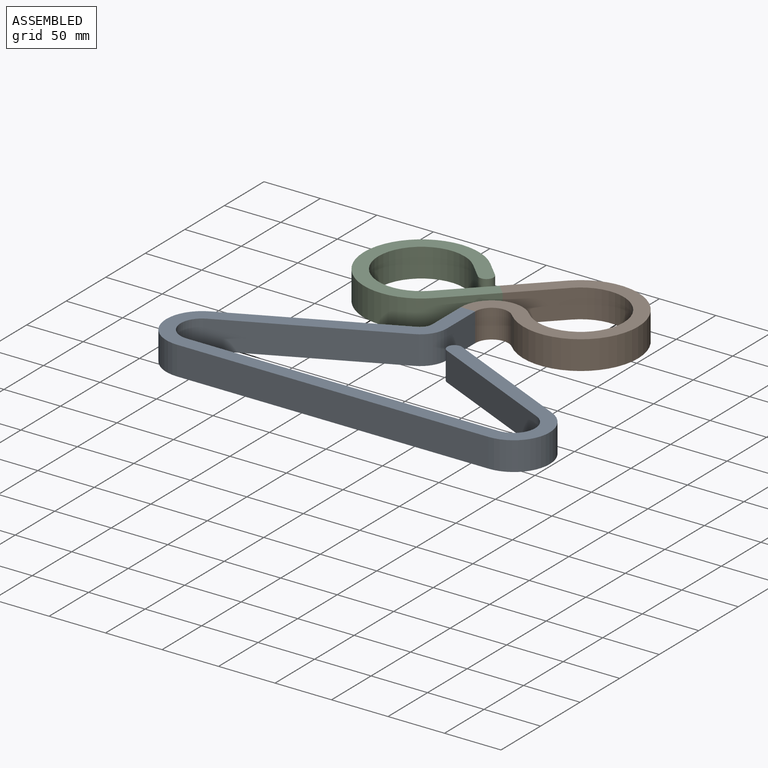
[diagram: assembled view]
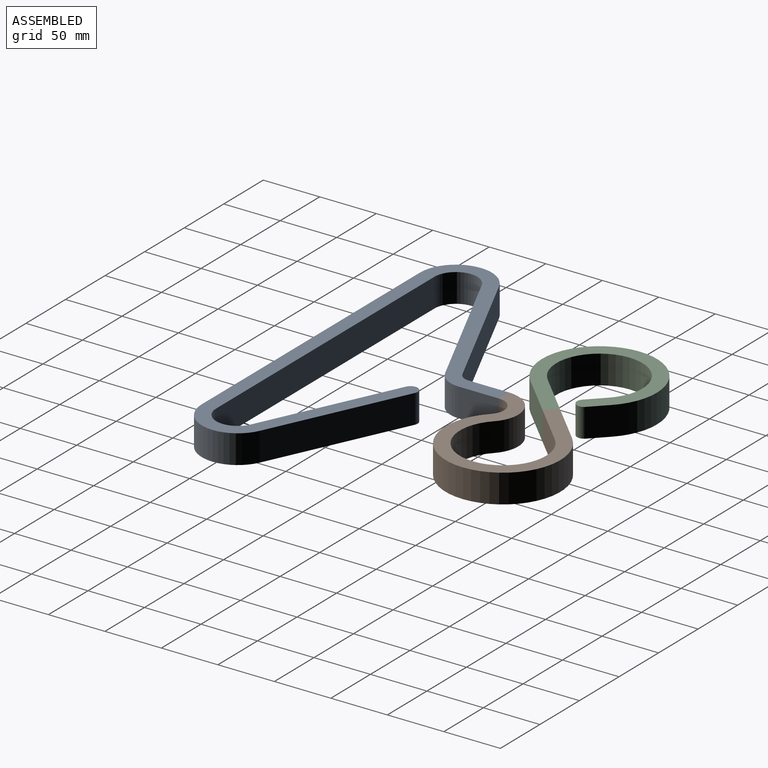
[diagram: assembled view, second angle]
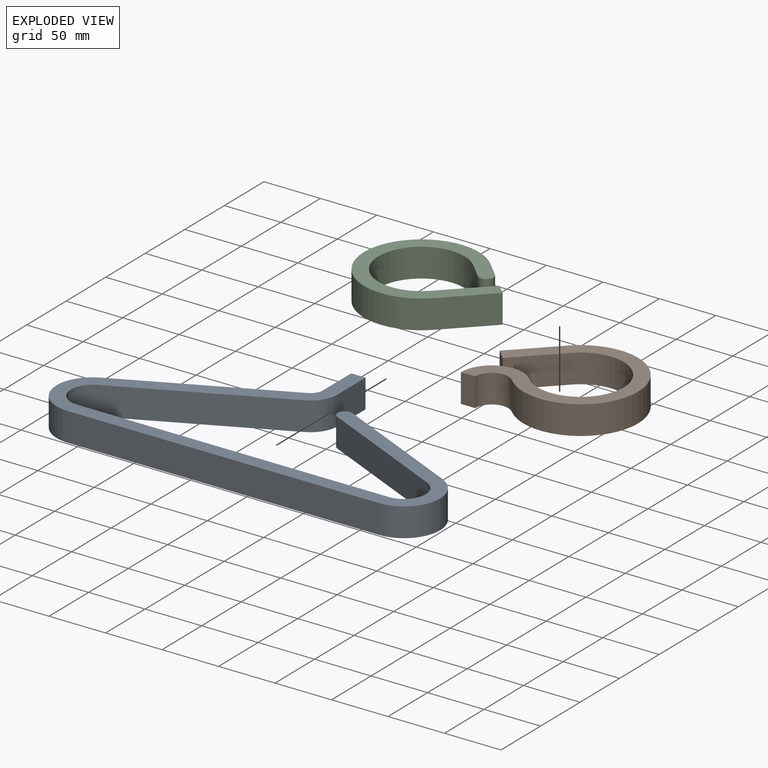
[diagram: exploded view]
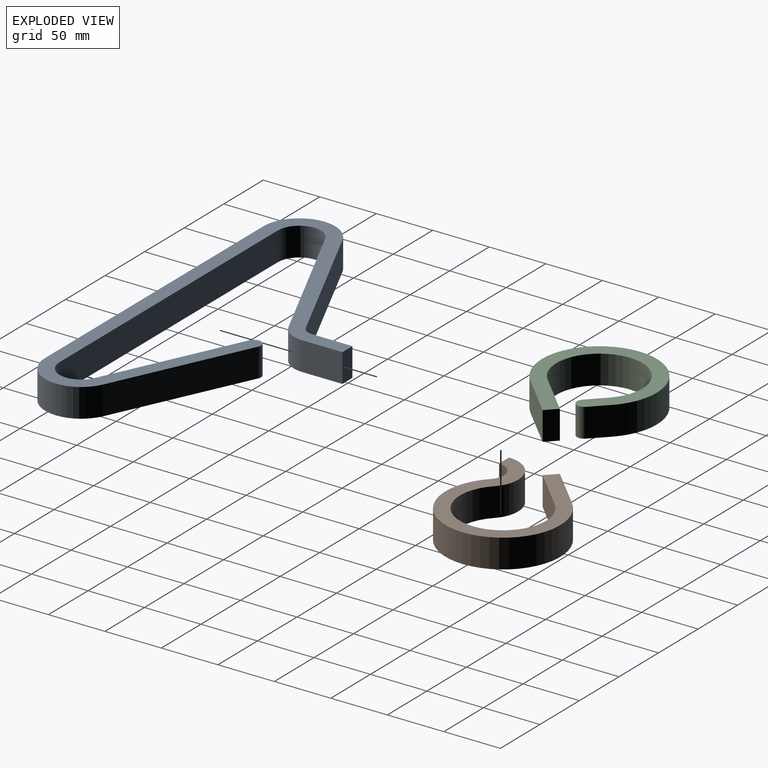
[diagram: exploded view, second angle]
ASSEMBLY  parts=3 mates=2
PART A: 18 faces, bbox 339.3x170.8x25.4 mm
  f0: plane 35.72x25.4mm, normal (-1,0,0), area 907.3mm2, adj f1,f15,f16,f17
  f1: cylinder r=10.97mm len=25.4mm, axis (0,0,-1), area 316.1mm2, adj f0,f2,f16,f17
  f2: plane 138.66x64.66mm, normal (-0.42,0.91,0), area 3886mm2, adj f1,f3,f16,f17
  f3: cylinder r=31.75mm len=60.53mm, axis (0,0,-1), area 2181.7mm2, adj f2,f4,f16,f17
  f4: plane 275.85x25.4mm, normal (0,-1,0), area 7006.5mm2, adj f3,f5,f16,f17
  f5: cylinder r=31.75mm len=60.53mm, axis (0,0,-1), area 2181.7mm2, adj f4,f6,f16,f17
  f6: plane 117.79x54.93mm, normal (0.42,0.91,0), area 3301.3mm2, adj f5,f7,f16,f17
  f7: cylinder r=6.35mm len=25.4mm, axis (0,0,-1), area 506.7mm2, adj f6,f8,f16,f17
  f8: plane 117.79x54.93mm, normal (-0.42,-0.91,0), area 3301.3mm2, adj f7,f9,f16,f17
  f9: cylinder r=19.05mm len=36.32mm, axis (0,0,-1), area 1309mm2, adj f8,f10,f16,f17
  f10: plane 275.85x25.4mm, normal (0,1,0), area 7006.5mm2, adj f9,f11,f16,f17
  f11: cylinder r=19.05mm len=36.32mm, axis (0,0,-1), area 1309mm2, adj f10,f12,f16,f17
  f12: plane 138.66x64.66mm, normal (0.42,-0.91,0), area 3886mm2, adj f11,f13,f16,f17
  f13: cylinder r=23.67mm len=25.4mm, axis (0,0,-1), area 682mm2, adj f12,f14,f16,f17
  f14: plane 35.72x25.4mm, normal (1,0,0), area 907.3mm2, adj f13,f15,f16,f17
  f15: plane 25.4x12.7mm, normal (0,1,0), area 322.6mm2, adj f0,f14,f16,f17
  f16: plane 339.35x170.85mm, normal (0,0,1), area 9608.7mm2, adj f0,f1,f2,f3,f4,f5,f6,f7
  f17: plane 339.35x170.85mm, normal (0,0,-1), area 9608.7mm2, adj f0,f1,f2,f3,f4,f5,f6,f7
PART B: 10 faces, bbox 101.6x135.7x25.4 mm
  f0: plane 50.8x25.4mm, normal (-1,0,0), area 1290.3mm2, adj f1,f7,f8,f9
  f1: cylinder r=38.1mm len=76.2mm, axis (0,0,-1), area 4560.4mm2, adj f0,f2,f8,f9
  f2: cylinder r=27.39mm len=46.76mm, axis (0,0,-1), area 1639.3mm2, adj f1,f3,f8,f9
  f3: plane 25.4x8.98mm, normal (-0.71,0.71,0), area 322.6mm2, adj f2,f4,f8,f9
  f4: cylinder r=14.69mm len=25.4mm, axis (0,0,-1), area 879.3mm2, adj f3,f5,f8,f9
  f5: cylinder r=50.8mm len=101.6mm, axis (0,0,-1), area 6080.5mm2, adj f4,f6,f8,f9
  f6: plane 50.8x25.4mm, normal (1,0,0), area 1290.3mm2, adj f5,f7,f8,f9
  f7: plane 25.4x12.7mm, normal (0,1,0), area 322.6mm2, adj f0,f6,f8,f9
  f8: plane 135.66x101.6mm, normal (0,0,1), area 3935mm2, adj f0,f1,f2,f3,f4,f5,f6,f7
  f9: plane 135.66x101.6mm, normal (0,0,-1), area 3935mm2, adj f0,f1,f2,f3,f4,f5,f6,f7
PART C: 10 faces, bbox 101.6x101.6x25.4 mm
  f0: plane 25.4x19.05mm, normal (0,-1,0), area 483.9mm2, adj f1,f7,f8,f9
  f1: cylinder r=6.35mm len=25.4mm, axis (0,0,-1), area 506.7mm2, adj f0,f2,f8,f9
  f2: plane 25.4x19.05mm, normal (0,1,0), area 483.9mm2, adj f1,f3,f8,f9
  f3: cylinder r=50.8mm len=101.6mm, axis (0,0,-1), area 6080.5mm2, adj f2,f4,f8,f9
  f4: plane 50.8x25.4mm, normal (1,0,0), area 1290.3mm2, adj f3,f5,f8,f9
  f5: plane 25.4x12.7mm, normal (0,1,0), area 322.6mm2, adj f4,f6,f8,f9
  f6: plane 50.8x25.4mm, normal (-1,0,0), area 1290.3mm2, adj f5,f7,f8,f9
  f7: cylinder r=38.1mm len=76.2mm, axis (0,0,-1), area 4560.4mm2, adj f0,f6,f8,f9
  f8: plane 101.6x101.6mm, normal (0,0,1), area 3610.6mm2, adj f0,f1,f2,f3,f4,f5,f6,f7
  f9: plane 101.6x101.6mm, normal (0,0,-1), area 3610.6mm2, adj f0,f1,f2,f3,f4,f5,f6,f7
PLACE A rot(axis=(0,0,1),0deg) t=(0,-41.82,0)mm
PLACE B rot(axis=(0,0,1),135deg) t=(67.35,4.49,0)mm
PLACE C rot(axis=(0,0,-1),45deg) t=(-67.35,-4.49,0)mm
MATE fastened C.f9 <-> B.f9  axis (0,0,1) through (0,0,0)mm
MATE fastened B.f3 <-> A.f15  axis (0,-1,0) through (0,-41.82,12.7)mm
